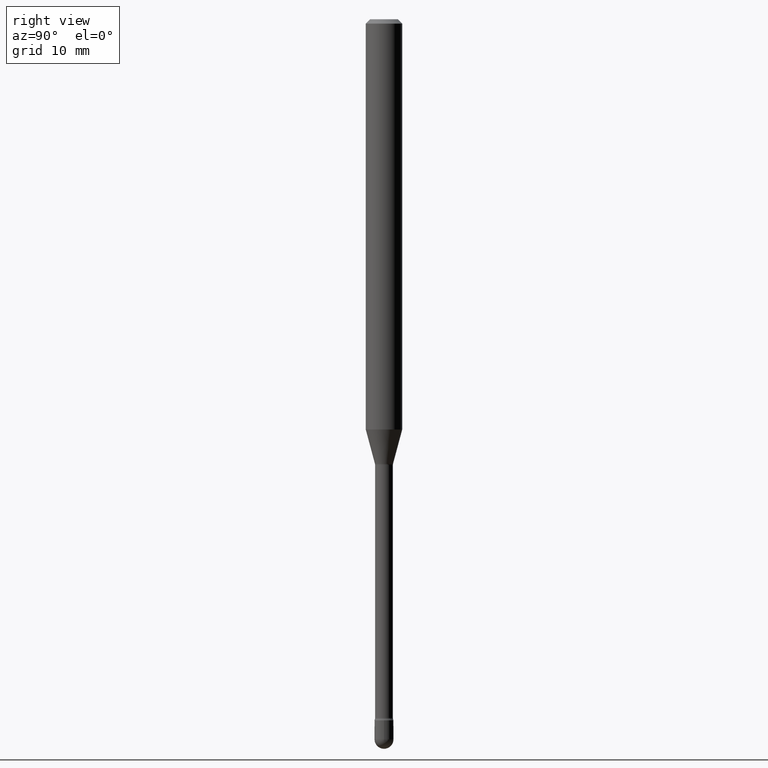
[diagram: clean part render]
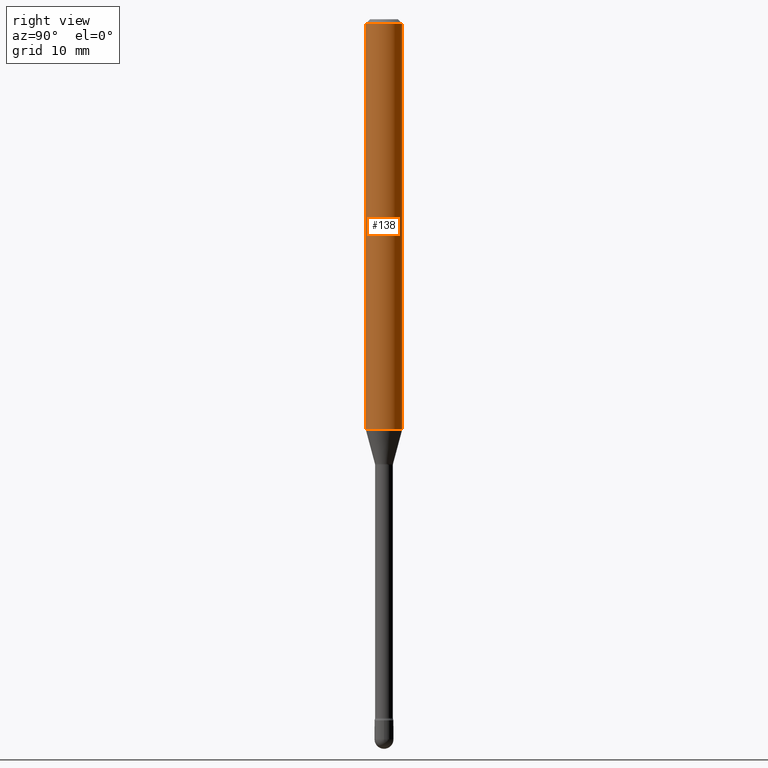
[diagram: same view with one face highlighted and labeled with its STEP entity id]
A machine part, right view. The second image highlights one B-rep face of the part: STEP entity #138.
In plain terms, the highlighted cylindrical surface (edge-blend (fillet) strip) has radius 1.5875 mm, axis along (-0, 0, 1).
Its self-contained STEP definition (entity closure, byte-faithful):
#5 = DIRECTION ( 'NONE',  ( -2.445462509514312655E-29, 3.491490356034149509E-15, 1.000000000000000000 ) ) ;
#18 = CIRCLE ( 'NONE', #532, 0.06250000000000000000 ) ;
#27 = ORIENTED_EDGE ( 'NONE', *, *, #412, .F. ) ;
#30 = DIRECTION ( 'NONE',  ( -2.445462509514312655E-29, 3.491490356034149509E-15, 1.000000000000000000 ) ) ;
#59 = VERTEX_POINT ( 'NONE', #123 ) ;
#62 = CARTESIAN_POINT ( 'NONE',  ( 3.437735765853609990E-29, -4.908200893030823515E-15, -1.405760976698174902 ) ) ;
#75 = LINE ( 'NONE', #180, #326 ) ;
#101 = CIRCLE ( 'NONE', #228, 0.06250000000000000000 ) ;
#105 = CARTESIAN_POINT ( 'NONE',  ( 4.440892098500967344E-16, 0.06249999999999506645, -1.405760976698175124 ) ) ;
#109 = EDGE_LOOP ( 'NONE', ( #179, #417, #27, #411 ) ) ;
#123 = CARTESIAN_POINT ( 'NONE',  ( -4.364351673553574033E-16, -0.06250000000000494049, -1.405760976698174458 ) ) ;
#124 = EDGE_CURVE ( 'NONE', #59, #467, #172, .T. ) ;
#130 = CYLINDRICAL_SURFACE ( 'NONE', #147, 0.06250000000000000000 ) ;
#138 = ADVANCED_FACE ( 'NONE', ( #515 ), #130, .T. ) ;
#147 = AXIS2_PLACEMENT_3D ( 'NONE', #254, #298, #476 ) ;
#157 = CARTESIAN_POINT ( 'NONE',  ( -4.364351673553912750E-16, -0.06250000000000005551, -0.01499999999999986587 ) ) ;
#170 = VERTEX_POINT ( 'NONE', #343 ) ;
#172 = LINE ( 'NONE', #386, #428 ) ;
#179 = ORIENTED_EDGE ( 'NONE', *, *, #244, .T. ) ;
#180 = CARTESIAN_POINT ( 'NONE',  ( 4.440892098500625669E-16, 0.06250000000000000000, 2.598552516391117189E-16 ) ) ;
#215 = VERTEX_POINT ( 'NONE', #105 ) ;
#225 = DIRECTION ( 'NONE',  ( -6.982962677686265922E-15, -1.000000000000000000, 3.483106191921935554E-15 ) ) ;
#228 = AXIS2_PLACEMENT_3D ( 'NONE', #62, #372, #289 ) ;
#244 = EDGE_CURVE ( 'NONE', #59, #215, #101, .T. ) ;
#254 = CARTESIAN_POINT ( 'NONE',  ( -1.169113584055446105E-44, 1.669184350826100908E-30, 4.780733988912460139E-16 ) ) ;
#270 = CARTESIAN_POINT ( 'NONE',  ( 3.668193764271489529E-31, -5.237235534051253304E-17, -0.01500000000000008271 ) ) ;
#289 = DIRECTION ( 'NONE',  ( -6.982962677686265922E-15, -1.000000000000000000, 4.370956789862821150E-15 ) ) ;
#298 = DIRECTION ( 'NONE',  ( -2.445462509514312655E-29, 3.491490356034149509E-15, 1.000000000000000000 ) ) ;
#326 = VECTOR ( 'NONE', #5, 39.37007874015748143 ) ;
#343 = CARTESIAN_POINT ( 'NONE',  ( 4.440892098500972274E-16, 0.06249999999999995143, -0.01500000000000030129 ) ) ;
#372 = DIRECTION ( 'NONE',  ( -2.445462509514312655E-29, 3.491490356034149509E-15, 1.000000000000000000 ) ) ;
#386 = CARTESIAN_POINT ( 'NONE',  ( -4.364351673553916201E-16, -0.06250000000000000000, 6.962915461433803582E-16 ) ) ;
#411 = ORIENTED_EDGE ( 'NONE', *, *, #124, .F. ) ;
#412 = EDGE_CURVE ( 'NONE', #467, #170, #18, .T. ) ;
#417 = ORIENTED_EDGE ( 'NONE', *, *, #488, .T. ) ;
#428 = VECTOR ( 'NONE', #30, 39.37007874015748143 ) ;
#467 = VERTEX_POINT ( 'NONE', #157 ) ;
#476 = DIRECTION ( 'NONE',  ( -6.982962677686265922E-15, -1.000000000000000000, 3.491490356034149115E-15 ) ) ;
#478 = DIRECTION ( 'NONE',  ( -2.445462509514312655E-29, 3.491490356034149509E-15, 1.000000000000000000 ) ) ;
#488 = EDGE_CURVE ( 'NONE', #215, #170, #75, .T. ) ;
#515 = FACE_OUTER_BOUND ( 'NONE', #109, .T. ) ;
#532 = AXIS2_PLACEMENT_3D ( 'NONE', #270, #478, #225 ) ;